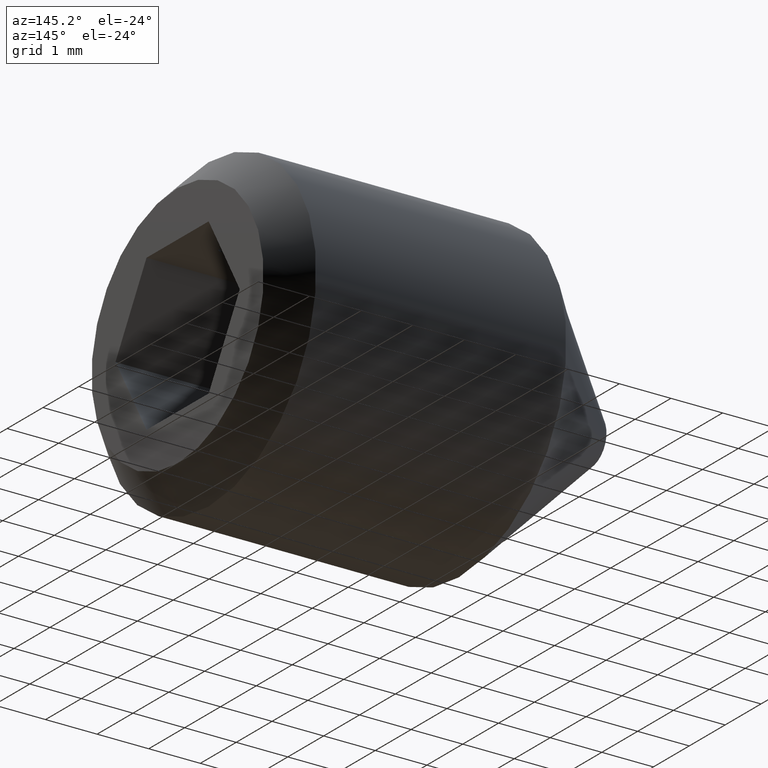
[diagram: clean part render]
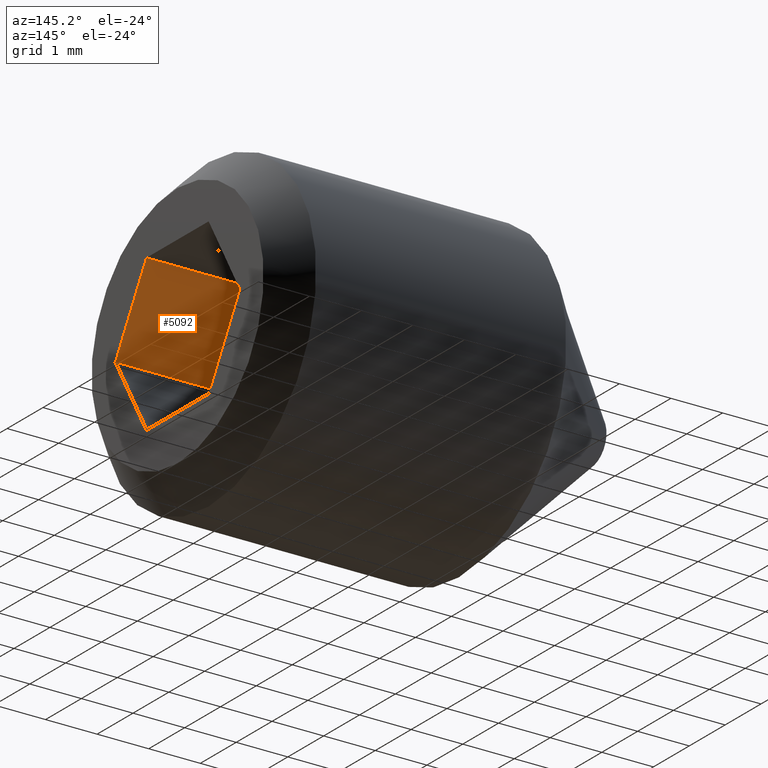
[diagram: same view with one face highlighted and labeled with its STEP entity id]
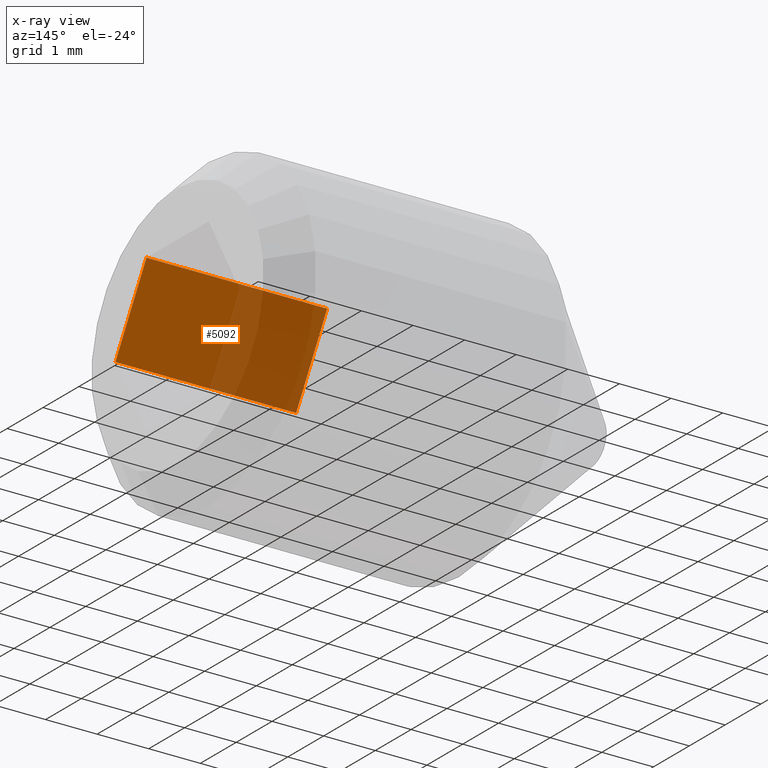
[diagram: x-ray of the same camera — body ghosted, the highlighted face saturated]
A machine part, auxiliary view. The second image highlights one B-rep face of the part: STEP entity #5092.
The next image is the same camera in x-ray: the body ghosted, the highlighted face saturated — about 48% of this face is hidden behind the body in this view.
In plain terms, the highlighted planar face has unit normal (-0, -0.866, 0.5).
Its self-contained STEP definition (entity closure, byte-faithful):
#554 = CARTESIAN_POINT ( 'NONE',  ( 8.000000000000000000, -1.732050807568877200, 5.421010862427522200E-016 ) ) ;
#588 = EDGE_CURVE ( 'NONE', #3574, #1072, #8689, .T. ) ;
#844 = DIRECTION ( 'NONE',  ( -3.061515884555945600E-017, -0.8660254037844386000, 0.5000000000000003300 ) ) ;
#940 = DIRECTION ( 'NONE',  ( 0.0000000000000000000, -0.5000000000000002200, -0.8660254037844384900 ) ) ;
#978 = FACE_OUTER_BOUND ( 'NONE', #6872, .T. ) ;
#1072 = VERTEX_POINT ( 'NONE', #8646 ) ;
#1845 = ORIENTED_EDGE ( 'NONE', *, *, #5122, .F. ) ;
#1960 = DIRECTION ( 'NONE',  ( 1.000000000000000000, -0.0000000000000000000, 6.123031769111886300E-017 ) ) ;
#2232 = CARTESIAN_POINT ( 'NONE',  ( 4.500000000000000900, -0.8660254037844380400, 1.499999999999999800 ) ) ;
#2346 = CARTESIAN_POINT ( 'NONE',  ( 8.000000000000000000, -0.8660254037844380400, 1.500000000000000000 ) ) ;
#2457 = VERTEX_POINT ( 'NONE', #554 ) ;
#2970 = CARTESIAN_POINT ( 'NONE',  ( 4.500000000000000900, -0.8660254037844380400, 1.499999999999999800 ) ) ;
#3363 = ORIENTED_EDGE ( 'NONE', *, *, #8115, .T. ) ;
#3444 = ORIENTED_EDGE ( 'NONE', *, *, #588, .F. ) ;
#3574 = VERTEX_POINT ( 'NONE', #9474 ) ;
#4562 = DIRECTION ( 'NONE',  ( 1.000000000000000000, -0.0000000000000000000, 6.123031769111886300E-017 ) ) ;
#5092 = ADVANCED_FACE ( 'NONE', ( #978 ), #10863, .F. ) ;
#5122 = EDGE_CURVE ( 'NONE', #1072, #2457, #6237, .T. ) ;
#5955 = VECTOR ( 'NONE', #4562, 1000.000000000000000 ) ;
#6237 = LINE ( 'NONE', #7014, #8593 ) ;
#6265 = EDGE_CURVE ( 'NONE', #7414, #2457, #9361, .T. ) ;
#6762 = LINE ( 'NONE', #2970, #5955 ) ;
#6872 = EDGE_LOOP ( 'NONE', ( #7919, #1845, #3444, #3363 ) ) ;
#7014 = CARTESIAN_POINT ( 'NONE',  ( 4.500000000000000900, -1.732050807568877000, 2.423462082778660800E-016 ) ) ;
#7160 = VECTOR ( 'NONE', #10009, 1000.000000000000200 ) ;
#7414 = VERTEX_POINT ( 'NONE', #2346 ) ;
#7919 = ORIENTED_EDGE ( 'NONE', *, *, #6265, .T. ) ;
#8115 = EDGE_CURVE ( 'NONE', #3574, #7414, #6762, .T. ) ;
#8120 = DIRECTION ( 'NONE',  ( 0.0000000000000000000, -0.5000000000000002200, -0.8660254037844384900 ) ) ;
#8367 = CARTESIAN_POINT ( 'NONE',  ( 4.500000000000000900, -0.8660254037844380400, 1.499999999999999800 ) ) ;
#8593 = VECTOR ( 'NONE', #1960, 1000.000000000000000 ) ;
#8646 = CARTESIAN_POINT ( 'NONE',  ( 4.500000000000000900, -1.732050807568877000, 2.423462082778660800E-016 ) ) ;
#8689 = LINE ( 'NONE', #2232, #8819 ) ;
#8770 = AXIS2_PLACEMENT_3D ( 'NONE', #8367, #844, #940 ) ;
#8819 = VECTOR ( 'NONE', #8120, 1000.000000000000200 ) ;
#9361 = LINE ( 'NONE', #10789, #7160 ) ;
#9474 = CARTESIAN_POINT ( 'NONE',  ( 4.500000000000000900, -0.8660254037844380400, 1.499999999999999800 ) ) ;
#10009 = DIRECTION ( 'NONE',  ( 0.0000000000000000000, -0.5000000000000002200, -0.8660254037844384900 ) ) ;
#10789 = CARTESIAN_POINT ( 'NONE',  ( 8.000000000000000000, -0.8660254037844380400, 1.500000000000000000 ) ) ;
#10863 = PLANE ( 'NONE',  #8770 ) ;